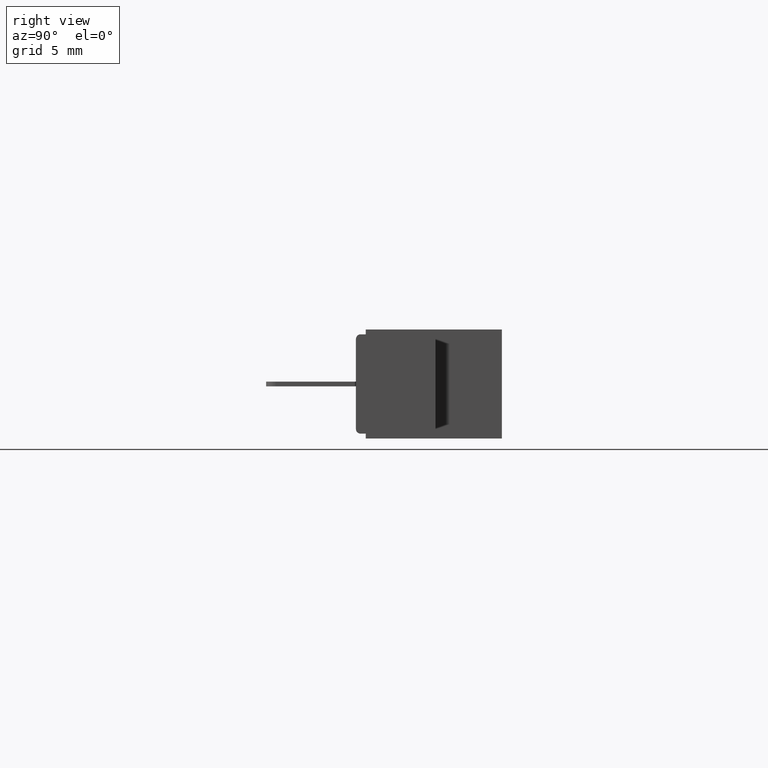
[diagram: clean part render]
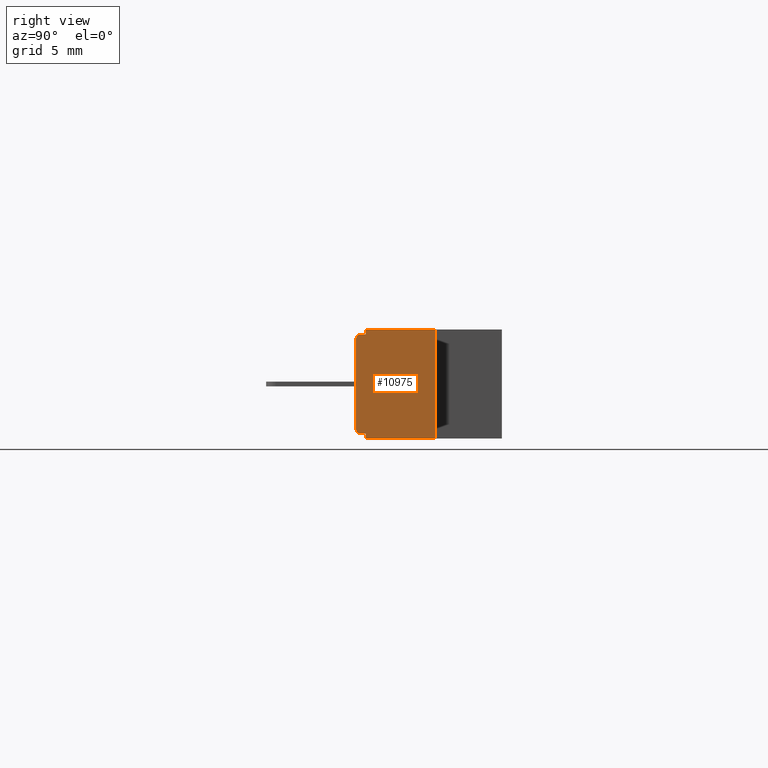
[diagram: same view with one face highlighted and labeled with its STEP entity id]
A machine part, right view. The second image highlights one B-rep face of the part: STEP entity #10975.
In plain terms, the highlighted planar face has unit normal (-1, 0, 0).
Its self-contained STEP definition (entity closure, byte-faithful):
#259 = CARTESIAN_POINT ( 'NONE',  ( 2.153999999999999915, 0.03099999999999999978, -0.3430000000000000271 ) ) ;
#346 = CARTESIAN_POINT ( 'NONE',  ( 2.153999999999999915, 0.0000000000000000000, -0.02999999999999995379 ) ) ;
#372 = DIRECTION ( 'NONE',  ( 0.0000000000000000000, 0.0000000000000000000, 1.000000000000000000 ) ) ;
#879 = VERTEX_POINT ( 'NONE', #7221 ) ;
#888 = CARTESIAN_POINT ( 'NONE',  ( 2.153999999999999915, 0.4600000000000000200, 0.0000000000000000000 ) ) ;
#1069 = CARTESIAN_POINT ( 'NONE',  ( 2.153999999999999915, 0.03099999999999999978, 0.0000000000000000000 ) ) ;
#1303 = ORIENTED_EDGE ( 'NONE', *, *, #8055, .T. ) ;
#1611 = VECTOR ( 'NONE', #7023, 39.37007874015748143 ) ;
#1634 = CARTESIAN_POINT ( 'NONE',  ( 2.153999999999999915, 0.0000000000000000000, -0.01499999999999997689 ) ) ;
#1674 = CARTESIAN_POINT ( 'NONE',  ( 2.153999999999999915, 0.2500000000000000555, 0.0000000000000000000 ) ) ;
#2589 = CARTESIAN_POINT ( 'NONE',  ( 2.153999999999999915, 0.03099999999999999978, -0.3430000000000000271 ) ) ;
#2663 = CIRCLE ( 'NONE', #8213, 0.01500000000000001159 ) ;
#2765 = CARTESIAN_POINT ( 'NONE',  ( 2.153999999999999915, 0.2500000000000000555, 0.0000000000000000000 ) ) ;
#2844 = CARTESIAN_POINT ( 'NONE',  ( 2.153999999999999915, 0.0000000000000000000, -0.3130000000000000560 ) ) ;
#2845 = VERTEX_POINT ( 'NONE', #259 ) ;
#2924 = EDGE_CURVE ( 'NONE', #5400, #2845, #3652, .T. ) ;
#3162 = CARTESIAN_POINT ( 'NONE',  ( 2.153999999999999915, 0.0000000000000000000, -0.3280000000000000138 ) ) ;
#3261 = CARTESIAN_POINT ( 'NONE',  ( 2.153999999999999915, 0.01499999999999999944, -0.02999999999999995379 ) ) ;
#3294 = EDGE_CURVE ( 'NONE', #7859, #11282, #11104, .T. ) ;
#3484 = VERTEX_POINT ( 'NONE', #2844 ) ;
#3587 = DIRECTION ( 'NONE',  ( -0.0000000000000000000, -0.0000000000000000000, -1.000000000000000000 ) ) ;
#3652 = LINE ( 'NONE', #6868, #11312 ) ;
#3809 = DIRECTION ( 'NONE',  ( 0.0000000000000000000, 0.0000000000000000000, -1.000000000000000000 ) ) ;
#4144 = VECTOR ( 'NONE', #12806, 39.37007874015748143 ) ;
#4161 = ORIENTED_EDGE ( 'NONE', *, *, #5851, .T. ) ;
#4377 = ORIENTED_EDGE ( 'NONE', *, *, #12245, .T. ) ;
#4420 = CARTESIAN_POINT ( 'NONE',  ( 2.153999999999999915, 0.03099999999999999978, -0.01499999999999997689 ) ) ;
#4429 = DIRECTION ( 'NONE',  ( -0.0000000000000000000, -1.000000000000000000, -0.0000000000000000000 ) ) ;
#4511 = LINE ( 'NONE', #1634, #4144 ) ;
#4849 = PLANE ( 'NONE',  #8439 ) ;
#4901 = VERTEX_POINT ( 'NONE', #11475 ) ;
#5043 = DIRECTION ( 'NONE',  ( 0.0000000000000000000, 1.000000000000000000, 0.0000000000000000000 ) ) ;
#5065 = VERTEX_POINT ( 'NONE', #2765 ) ;
#5334 = AXIS2_PLACEMENT_3D ( 'NONE', #3261, #9493, #372 ) ;
#5400 = VERTEX_POINT ( 'NONE', #6421 ) ;
#5429 = CARTESIAN_POINT ( 'NONE',  ( 2.153999999999999915, 0.4600000000000000200, 0.0000000000000000000 ) ) ;
#5663 = EDGE_CURVE ( 'NONE', #879, #9900, #8250, .T. ) ;
#5851 = EDGE_CURVE ( 'NONE', #5065, #4901, #10525, .T. ) ;
#5930 = EDGE_CURVE ( 'NONE', #5065, #5400, #12927, .T. ) ;
#6145 = EDGE_CURVE ( 'NONE', #4901, #11693, #10312, .T. ) ;
#6406 = CARTESIAN_POINT ( 'NONE',  ( 2.153999999999999915, 0.03099999999999999978, -0.3280000000000000138 ) ) ;
#6421 = CARTESIAN_POINT ( 'NONE',  ( 2.153999999999999915, 0.2500000000000000555, -0.3430000000000000271 ) ) ;
#6868 = CARTESIAN_POINT ( 'NONE',  ( 2.153999999999999915, 0.4600000000000000200, -0.3430000000000000271 ) ) ;
#6958 = VECTOR ( 'NONE', #3809, 39.37007874015748143 ) ;
#7023 = DIRECTION ( 'NONE',  ( 0.0000000000000000000, 0.0000000000000000000, -1.000000000000000000 ) ) ;
#7142 = VECTOR ( 'NONE', #8874, 39.37007874015748143 ) ;
#7221 = CARTESIAN_POINT ( 'NONE',  ( 2.153999999999999915, 0.01499999999999999944, -0.3280000000000000138 ) ) ;
#7270 = ORIENTED_EDGE ( 'NONE', *, *, #3294, .T. ) ;
#7583 = VECTOR ( 'NONE', #4429, 39.37007874015748143 ) ;
#7811 = ORIENTED_EDGE ( 'NONE', *, *, #2924, .F. ) ;
#7859 = VERTEX_POINT ( 'NONE', #8229 ) ;
#8055 = EDGE_CURVE ( 'NONE', #9900, #2845, #9819, .T. ) ;
#8213 = AXIS2_PLACEMENT_3D ( 'NONE', #8600, #9479, #10545 ) ;
#8229 = CARTESIAN_POINT ( 'NONE',  ( 2.153999999999999915, 0.01499999999999999944, -0.01499999999999997689 ) ) ;
#8250 = LINE ( 'NONE', #3162, #11652 ) ;
#8439 = AXIS2_PLACEMENT_3D ( 'NONE', #888, #8928, #10809 ) ;
#8600 = CARTESIAN_POINT ( 'NONE',  ( 2.153999999999999915, 0.01499999999999999944, -0.3130000000000000560 ) ) ;
#8874 = DIRECTION ( 'NONE',  ( 0.0000000000000000000, 0.0000000000000000000, -1.000000000000000000 ) ) ;
#8928 = DIRECTION ( 'NONE',  ( -1.000000000000000000, 0.0000000000000000000, 0.0000000000000000000 ) ) ;
#9479 = DIRECTION ( 'NONE',  ( 1.000000000000000000, -0.0000000000000000000, -0.0000000000000000000 ) ) ;
#9493 = DIRECTION ( 'NONE',  ( 1.000000000000000000, -0.0000000000000000000, -0.0000000000000000000 ) ) ;
#9765 = DIRECTION ( 'NONE',  ( -0.0000000000000000000, -1.000000000000000000, -0.0000000000000000000 ) ) ;
#9819 = LINE ( 'NONE', #2589, #12640 ) ;
#9900 = VERTEX_POINT ( 'NONE', #6406 ) ;
#9930 = ORIENTED_EDGE ( 'NONE', *, *, #12163, .T. ) ;
#10064 = CARTESIAN_POINT ( 'NONE',  ( 2.153999999999999915, 0.0000000000000000000, 0.0000000000000000000 ) ) ;
#10312 = LINE ( 'NONE', #1069, #1611 ) ;
#10525 = LINE ( 'NONE', #5429, #7583 ) ;
#10545 = DIRECTION ( 'NONE',  ( 0.0000000000000000000, 0.0000000000000000000, 1.000000000000000000 ) ) ;
#10809 = DIRECTION ( 'NONE',  ( 0.0000000000000000000, 0.0000000000000000000, 1.000000000000000000 ) ) ;
#10865 = EDGE_CURVE ( 'NONE', #3484, #879, #2663, .T. ) ;
#10975 = ADVANCED_FACE ( 'NONE', ( #12000 ), #4849, .F. ) ;
#11066 = LINE ( 'NONE', #10064, #7142 ) ;
#11104 = CIRCLE ( 'NONE', #5334, 0.01499999999999999944 ) ;
#11268 = ORIENTED_EDGE ( 'NONE', *, *, #6145, .T. ) ;
#11282 = VERTEX_POINT ( 'NONE', #346 ) ;
#11312 = VECTOR ( 'NONE', #9765, 39.37007874015748143 ) ;
#11475 = CARTESIAN_POINT ( 'NONE',  ( 2.153999999999999915, 0.03099999999999999978, 0.0000000000000000000 ) ) ;
#11652 = VECTOR ( 'NONE', #5043, 39.37007874015748143 ) ;
#11693 = VERTEX_POINT ( 'NONE', #4420 ) ;
#12000 = FACE_OUTER_BOUND ( 'NONE', #12288, .T. ) ;
#12163 = EDGE_CURVE ( 'NONE', #11693, #7859, #4511, .T. ) ;
#12245 = EDGE_CURVE ( 'NONE', #11282, #3484, #11066, .T. ) ;
#12288 = EDGE_LOOP ( 'NONE', ( #7811, #13217, #4161, #11268, #9930, #7270, #4377, #12499, #12727, #1303 ) ) ;
#12499 = ORIENTED_EDGE ( 'NONE', *, *, #10865, .T. ) ;
#12640 = VECTOR ( 'NONE', #3587, 39.37007874015748143 ) ;
#12727 = ORIENTED_EDGE ( 'NONE', *, *, #5663, .T. ) ;
#12806 = DIRECTION ( 'NONE',  ( -0.0000000000000000000, -1.000000000000000000, -0.0000000000000000000 ) ) ;
#12927 = LINE ( 'NONE', #1674, #6958 ) ;
#13217 = ORIENTED_EDGE ( 'NONE', *, *, #5930, .F. ) ;